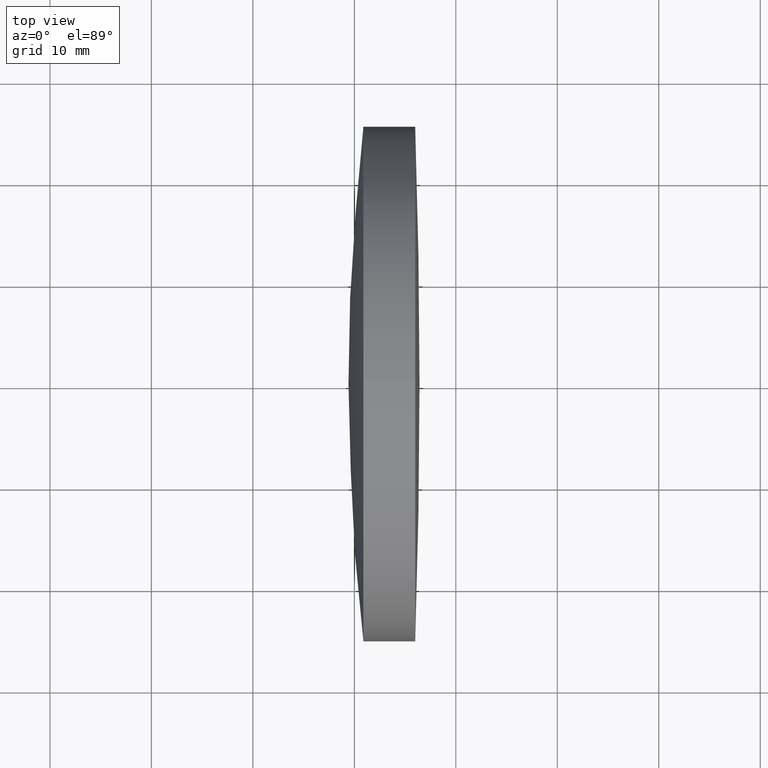
[diagram: clean part render]
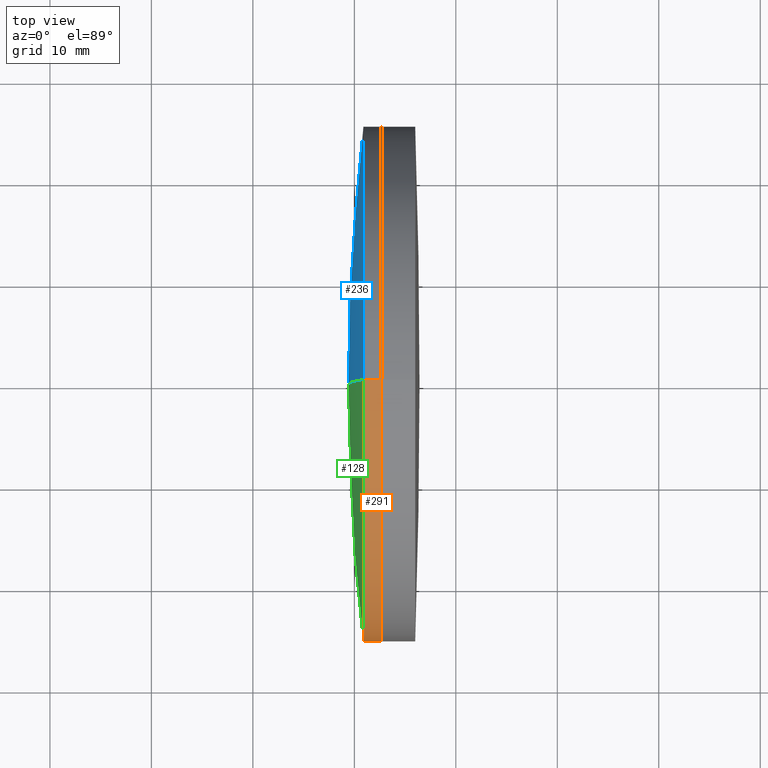
[diagram: same view with three faces highlighted in distinct colors, each labeled with its STEP entity id]
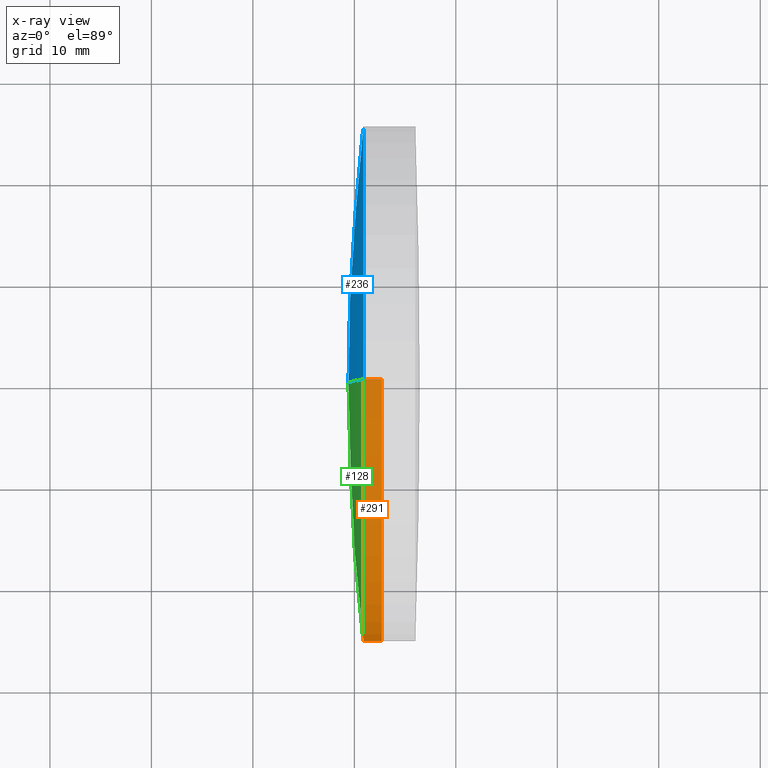
[diagram: x-ray of the same camera — body ghosted, the three highlighted faces saturated]
A machine part, top view with three faces highlighted in distinct colors.
The next image is the same camera in x-ray (body ghosted, the three faces saturated) — at least one of them is partly hidden behind the body in this view.
Their STEP definitions:

[orange] entity #291 — the highlighted cylindrical surface (partial cylindrical patch) has radius 25.4 mm, axis along (-1, -0, -0).
#2 = CARTESIAN_POINT ( 'NONE',  ( 440.8943219622805100, 0.0000000000000000000, 0.0000000000000000000 ) ) ;
#3 = CARTESIAN_POINT ( 'NONE',  ( 124.5233095260452400, 0.0000000000000000000, 0.0000000000000000000 ) ) ;
#12 = CYLINDRICAL_SURFACE ( 'NONE', #343, 25.39999999999999100 ) ;
#25 = EDGE_CURVE ( 'NONE', #116, #63, #171, .T. ) ;
#40 = CARTESIAN_POINT ( 'NONE',  ( 442.6868520807731200, 0.0000000000000000000, 0.0000000000000000000 ) ) ;
#63 = VERTEX_POINT ( 'NONE', #176 ) ;
#72 = VECTOR ( 'NONE', #244, 1000.000000000000000 ) ;
#82 = FACE_OUTER_BOUND ( 'NONE', #204, .T. ) ;
#89 = ORIENTED_EDGE ( 'NONE', *, *, #121, .F. ) ;
#114 = VERTEX_POINT ( 'NONE', #159 ) ;
#116 = VERTEX_POINT ( 'NONE', #127 ) ;
#119 = ORIENTED_EDGE ( 'NONE', *, *, #272, .T. ) ;
#121 = EDGE_CURVE ( 'NONE', #116, #325, #126, .T. ) ;
#124 = DIRECTION ( 'NONE',  ( -1.000000000000000000, -0.0000000000000000000, -0.0000000000000000000 ) ) ;
#126 = LINE ( 'NONE', #323, #72 ) ;
#127 = CARTESIAN_POINT ( 'NONE',  ( 442.6868520807731200, 3.110602869834276900E-015, -25.39999999999999900 ) ) ;
#136 = DIRECTION ( 'NONE',  ( 0.0000000000000000000, 0.0000000000000000000, 1.000000000000000000 ) ) ;
#152 = ORIENTED_EDGE ( 'NONE', *, *, #25, .T. ) ;
#159 = CARTESIAN_POINT ( 'NONE',  ( 440.8943219622805100, 0.0000000000000000000, 25.39999999999991700 ) ) ;
#166 = VECTOR ( 'NONE', #221, 1000.000000000000000 ) ;
#171 = CIRCLE ( 'NONE', #338, 25.39999999999999500 ) ;
#174 = CIRCLE ( 'NONE', #227, 25.39999999999999100 ) ;
#176 = CARTESIAN_POINT ( 'NONE',  ( 442.6868520807731200, 0.0000000000000000000, 25.39999999999999500 ) ) ;
#181 = EDGE_CURVE ( 'NONE', #325, #114, #174, .T. ) ;
#186 = ORIENTED_EDGE ( 'NONE', *, *, #181, .F. ) ;
#191 = DIRECTION ( 'NONE',  ( -1.000000000000000000, -0.0000000000000000000, -0.0000000000000000000 ) ) ;
#204 = EDGE_LOOP ( 'NONE', ( #89, #152, #119, #186 ) ) ;
#221 = DIRECTION ( 'NONE',  ( -1.000000000000000000, -0.0000000000000000000, -0.0000000000000000000 ) ) ;
#222 = CARTESIAN_POINT ( 'NONE',  ( 124.5233095260452400, 0.0000000000000000000, 25.39999999999999100 ) ) ;
#223 = DIRECTION ( 'NONE',  ( 0.0000000000000000000, 0.0000000000000000000, 1.000000000000000000 ) ) ;
#225 = CARTESIAN_POINT ( 'NONE',  ( 440.8943219622805100, 3.110602869834267000E-015, -25.39999999999991700 ) ) ;
#227 = AXIS2_PLACEMENT_3D ( 'NONE', #2, #191, #223 ) ;
#244 = DIRECTION ( 'NONE',  ( -1.000000000000000000, -0.0000000000000000000, -0.0000000000000000000 ) ) ;
#247 = DIRECTION ( 'NONE',  ( -1.000000000000000000, -0.0000000000000000000, -0.0000000000000000000 ) ) ;
#258 = DIRECTION ( 'NONE',  ( 0.0000000000000000000, 0.0000000000000000000, 1.000000000000000000 ) ) ;
#272 = EDGE_CURVE ( 'NONE', #63, #114, #277, .T. ) ;
#277 = LINE ( 'NONE', #222, #166 ) ;
#291 = ADVANCED_FACE ( 'NONE', ( #82 ), #12, .T. ) ;
#323 = CARTESIAN_POINT ( 'NONE',  ( 124.5233095260452400, 3.110602869834276100E-015, -25.39999999999999100 ) ) ;
#325 = VERTEX_POINT ( 'NONE', #225 ) ;
#338 = AXIS2_PLACEMENT_3D ( 'NONE', #40, #124, #258 ) ;
#343 = AXIS2_PLACEMENT_3D ( 'NONE', #3, #247, #136 ) ;

[blue] entity #236 — the highlighted spherical surface has radius 219.8 mm.
#17 = AXIS2_PLACEMENT_3D ( 'NONE', #142, #163, #26 ) ;
#26 = DIRECTION ( 'NONE',  ( 0.0000000000000000000, -1.224646799147353200E-016, 1.000000000000000000 ) ) ;
#35 = EDGE_LOOP ( 'NONE', ( #200, #38, #78 ) ) ;
#38 = ORIENTED_EDGE ( 'NONE', *, *, #255, .T. ) ;
#59 = CARTESIAN_POINT ( 'NONE',  ( 440.8943219622805100, 0.0000000000000000000, 0.0000000000000000000 ) ) ;
#62 = SPHERICAL_SURFACE ( 'NONE', #66, 219.8000000000000400 ) ;
#66 = AXIS2_PLACEMENT_3D ( 'NONE', #139, #137, #305 ) ;
#74 = VERTEX_POINT ( 'NONE', #241 ) ;
#78 = ORIENTED_EDGE ( 'NONE', *, *, #92, .F. ) ;
#92 = EDGE_CURVE ( 'NONE', #114, #74, #207, .T. ) ;
#114 = VERTEX_POINT ( 'NONE', #159 ) ;
#132 = DIRECTION ( 'NONE',  ( 0.0000000000000000000, -1.000000000000000000, 0.0000000000000000000 ) ) ;
#137 = DIRECTION ( 'NONE',  ( 0.0000000000000000000, 1.000000000000000000, 0.0000000000000000000 ) ) ;
#139 = CARTESIAN_POINT ( 'NONE',  ( 659.2217824430913400, 0.0000000000000000000, -4.361997626380887500E-015 ) ) ;
#140 = DIRECTION ( 'NONE',  ( -1.000000000000000000, -0.0000000000000000000, -0.0000000000000000000 ) ) ;
#141 = AXIS2_PLACEMENT_3D ( 'NONE', #59, #140, #274 ) ;
#142 = CARTESIAN_POINT ( 'NONE',  ( 659.2217824430913400, 0.0000000000000000000, -4.361997626380887500E-015 ) ) ;
#159 = CARTESIAN_POINT ( 'NONE',  ( 440.8943219622805100, 0.0000000000000000000, 25.39999999999991700 ) ) ;
#163 = DIRECTION ( 'NONE',  ( -0.0000000000000000000, 1.000000000000000000, 1.224646799147353200E-016 ) ) ;
#182 = DIRECTION ( 'NONE',  ( 0.0000000000000000000, 0.0000000000000000000, -1.000000000000000000 ) ) ;
#193 = AXIS2_PLACEMENT_3D ( 'NONE', #213, #132, #182 ) ;
#200 = ORIENTED_EDGE ( 'NONE', *, *, #302, .T. ) ;
#207 = CIRCLE ( 'NONE', #193, 219.8000000000000400 ) ;
#213 = CARTESIAN_POINT ( 'NONE',  ( 659.2217824430913400, 0.0000000000000000000, -4.361997626380887500E-015 ) ) ;
#225 = CARTESIAN_POINT ( 'NONE',  ( 440.8943219622805100, 3.110602869834267000E-015, -25.39999999999991700 ) ) ;
#236 = ADVANCED_FACE ( 'NONE', ( #307 ), #62, .T. ) ;
#241 = CARTESIAN_POINT ( 'NONE',  ( 439.4217824430913300, 0.0000000000000000000, 9.096870696248528300E-015 ) ) ;
#255 = EDGE_CURVE ( 'NONE', #325, #74, #334, .T. ) ;
#274 = DIRECTION ( 'NONE',  ( 0.0000000000000000000, 0.0000000000000000000, 1.000000000000000000 ) ) ;
#302 = EDGE_CURVE ( 'NONE', #114, #325, #321, .T. ) ;
#305 = DIRECTION ( 'NONE',  ( 0.0000000000000000000, 0.0000000000000000000, 1.000000000000000000 ) ) ;
#307 = FACE_OUTER_BOUND ( 'NONE', #35, .T. ) ;
#321 = CIRCLE ( 'NONE', #141, 25.39999999999999100 ) ;
#325 = VERTEX_POINT ( 'NONE', #225 ) ;
#334 = CIRCLE ( 'NONE', #17, 219.8000000000000400 ) ;

[green] entity #128 — the highlighted spherical surface has radius 219.8 mm.
#2 = CARTESIAN_POINT ( 'NONE',  ( 440.8943219622805100, 0.0000000000000000000, 0.0000000000000000000 ) ) ;
#9 = FACE_OUTER_BOUND ( 'NONE', #39, .T. ) ;
#17 = AXIS2_PLACEMENT_3D ( 'NONE', #142, #163, #26 ) ;
#26 = DIRECTION ( 'NONE',  ( 0.0000000000000000000, -1.224646799147353200E-016, 1.000000000000000000 ) ) ;
#39 = EDGE_LOOP ( 'NONE', ( #290, #83, #262 ) ) ;
#44 = DIRECTION ( 'NONE',  ( 0.0000000000000000000, 0.0000000000000000000, 1.000000000000000000 ) ) ;
#74 = VERTEX_POINT ( 'NONE', #241 ) ;
#75 = DIRECTION ( 'NONE',  ( 0.0000000000000000000, 1.000000000000000000, 0.0000000000000000000 ) ) ;
#83 = ORIENTED_EDGE ( 'NONE', *, *, #181, .T. ) ;
#92 = EDGE_CURVE ( 'NONE', #114, #74, #207, .T. ) ;
#114 = VERTEX_POINT ( 'NONE', #159 ) ;
#128 = ADVANCED_FACE ( 'NONE', ( #9 ), #256, .T. ) ;
#132 = DIRECTION ( 'NONE',  ( 0.0000000000000000000, -1.000000000000000000, 0.0000000000000000000 ) ) ;
#142 = CARTESIAN_POINT ( 'NONE',  ( 659.2217824430913400, 0.0000000000000000000, -4.361997626380887500E-015 ) ) ;
#159 = CARTESIAN_POINT ( 'NONE',  ( 440.8943219622805100, 0.0000000000000000000, 25.39999999999991700 ) ) ;
#163 = DIRECTION ( 'NONE',  ( -0.0000000000000000000, 1.000000000000000000, 1.224646799147353200E-016 ) ) ;
#174 = CIRCLE ( 'NONE', #227, 25.39999999999999100 ) ;
#181 = EDGE_CURVE ( 'NONE', #325, #114, #174, .T. ) ;
#182 = DIRECTION ( 'NONE',  ( 0.0000000000000000000, 0.0000000000000000000, -1.000000000000000000 ) ) ;
#191 = DIRECTION ( 'NONE',  ( -1.000000000000000000, -0.0000000000000000000, -0.0000000000000000000 ) ) ;
#193 = AXIS2_PLACEMENT_3D ( 'NONE', #213, #132, #182 ) ;
#207 = CIRCLE ( 'NONE', #193, 219.8000000000000400 ) ;
#213 = CARTESIAN_POINT ( 'NONE',  ( 659.2217824430913400, 0.0000000000000000000, -4.361997626380887500E-015 ) ) ;
#223 = DIRECTION ( 'NONE',  ( 0.0000000000000000000, 0.0000000000000000000, 1.000000000000000000 ) ) ;
#225 = CARTESIAN_POINT ( 'NONE',  ( 440.8943219622805100, 3.110602869834267000E-015, -25.39999999999991700 ) ) ;
#227 = AXIS2_PLACEMENT_3D ( 'NONE', #2, #191, #223 ) ;
#241 = CARTESIAN_POINT ( 'NONE',  ( 439.4217824430913300, 0.0000000000000000000, 9.096870696248528300E-015 ) ) ;
#243 = AXIS2_PLACEMENT_3D ( 'NONE', #344, #75, #44 ) ;
#255 = EDGE_CURVE ( 'NONE', #325, #74, #334, .T. ) ;
#256 = SPHERICAL_SURFACE ( 'NONE', #243, 219.8000000000000400 ) ;
#262 = ORIENTED_EDGE ( 'NONE', *, *, #92, .T. ) ;
#290 = ORIENTED_EDGE ( 'NONE', *, *, #255, .F. ) ;
#325 = VERTEX_POINT ( 'NONE', #225 ) ;
#334 = CIRCLE ( 'NONE', #17, 219.8000000000000400 ) ;
#344 = CARTESIAN_POINT ( 'NONE',  ( 659.2217824430913400, 0.0000000000000000000, -4.361997626380887500E-015 ) ) ;